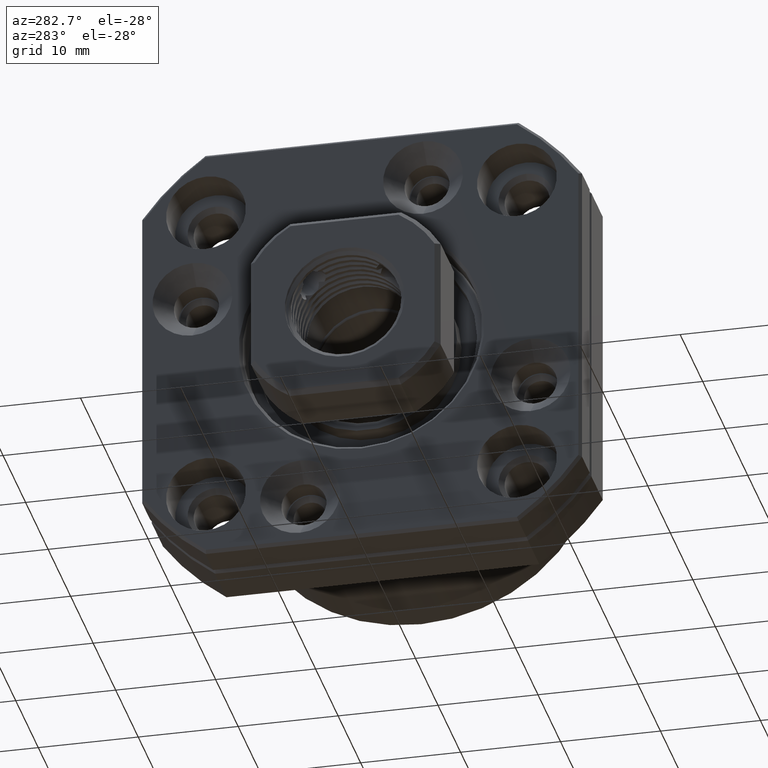
[diagram: clean part render]
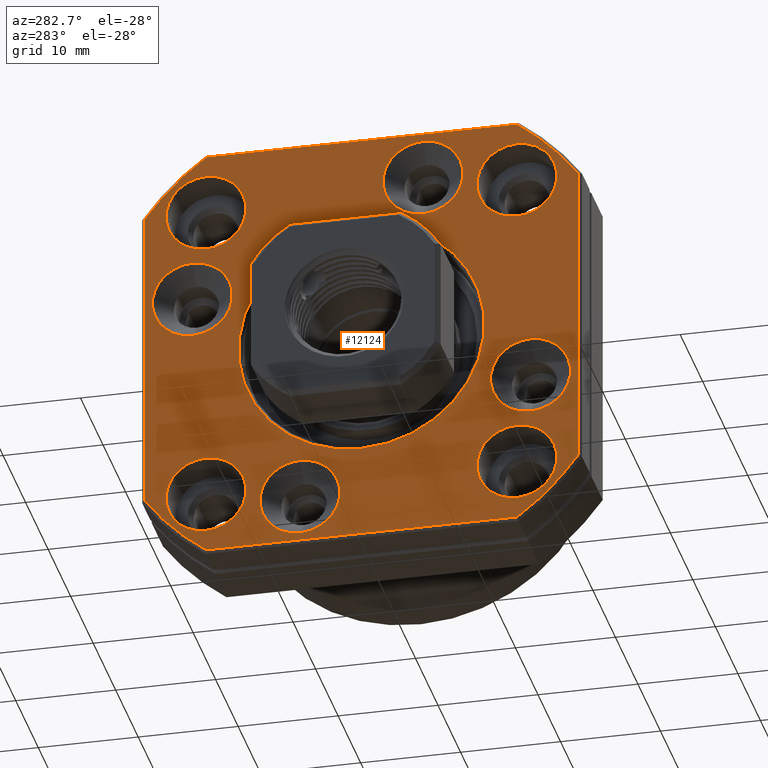
[diagram: same view with one face highlighted and labeled with its STEP entity id]
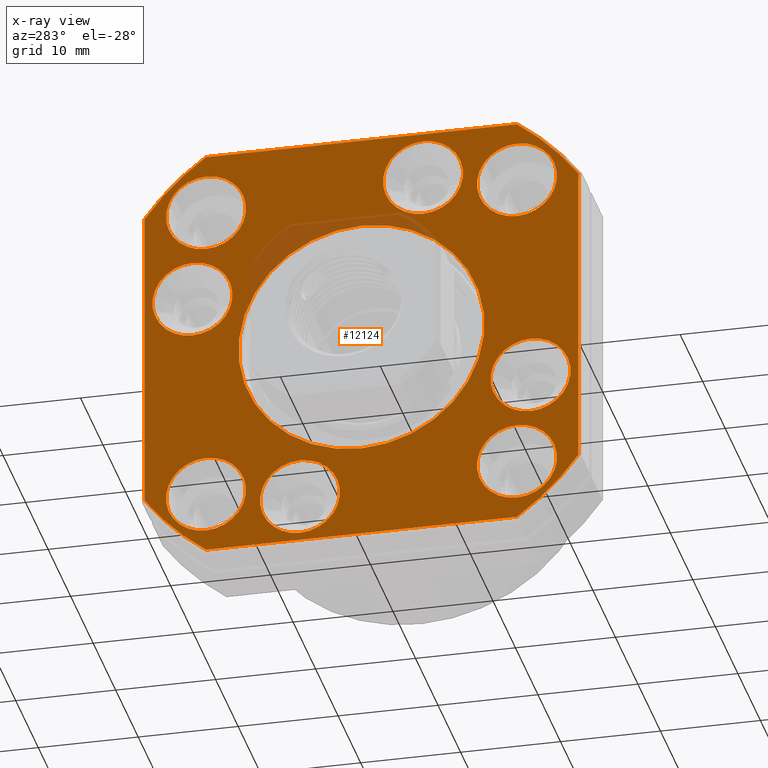
[diagram: x-ray of the same camera — body ghosted, the highlighted face saturated]
A machine part, auxiliary view. The second image highlights one B-rep face of the part: STEP entity #12124.
The next image is the same camera in x-ray: the body ghosted, the highlighted face saturated — about 4% of this face is hidden behind the body in this view.
In plain terms, the highlighted planar face has unit normal (1, 0, 0).
Its self-contained STEP definition (entity closure, byte-faithful):
#5464 = CARTESIAN_POINT ( 'NONE',  ( -3.999999999999998200, 16.91446717414641300, 10.15636257986187400 ) ) ;
#5465 = DIRECTION ( 'NONE',  ( 0.0000000000000000000, 0.0000000000000000000, 1.000000000000000000 ) ) ;
#5466 = DIRECTION ( 'NONE',  ( -1.000000000000000000, 0.0000000000000000000, 0.0000000000000000000 ) ) ;
#5467 = CARTESIAN_POINT ( 'NONE',  ( -3.999999999999998200, 16.91446717414641300, 6.156362579861873700 ) ) ;
#5468 = AXIS2_PLACEMENT_3D ( 'NONE', #5467, #5466, #5465 ) ;
#5469 = CIRCLE ( 'NONE', #5468, 4.000000000000000000 ) ;
#5470 = CARTESIAN_POINT ( 'NONE',  ( -3.999999999999998200, 16.91446717414641300, 2.156362579861874200 ) ) ;
#5494 = CARTESIAN_POINT ( 'NONE',  ( -3.999999999999996400, 0.0000000000000000000, 12.30000000000000100 ) ) ;
#5495 = DIRECTION ( 'NONE',  ( 0.0000000000000000000, 0.0000000000000000000, -1.000000000000000000 ) ) ;
#5496 = DIRECTION ( 'NONE',  ( 1.000000000000000000, 0.0000000000000000000, 0.0000000000000000000 ) ) ;
#5497 = CARTESIAN_POINT ( 'NONE',  ( -3.999999999999996400, 0.0000000000000000000, 0.0000000000000000000 ) ) ;
#5498 = AXIS2_PLACEMENT_3D ( 'NONE', #5497, #5496, #5495 ) ;
#5499 = CIRCLE ( 'NONE', #5498, 12.30000000000000100 ) ;
#5500 = CARTESIAN_POINT ( 'NONE',  ( -3.999999999999996400, 1.506265815201524100E-015, -12.30000000000000100 ) ) ;
#5542 = CARTESIAN_POINT ( 'NONE',  ( -3.999999999999998200, -6.156362579861933200, 20.91446717414638800 ) ) ;
#5543 = DIRECTION ( 'NONE',  ( 0.0000000000000000000, 0.0000000000000000000, 1.000000000000000000 ) ) ;
#5544 = DIRECTION ( 'NONE',  ( -1.000000000000000000, 0.0000000000000000000, 0.0000000000000000000 ) ) ;
#5545 = CARTESIAN_POINT ( 'NONE',  ( -3.999999999999998200, -6.156362579861933200, 16.91446717414638800 ) ) ;
#5546 = AXIS2_PLACEMENT_3D ( 'NONE', #5545, #5544, #5543 ) ;
#5547 = CIRCLE ( 'NONE', #5546, 4.000000000000000000 ) ;
#5548 = CARTESIAN_POINT ( 'NONE',  ( -3.999999999999998200, -6.156362579861932400, 12.91446717414638600 ) ) ;
#5553 = CARTESIAN_POINT ( 'NONE',  ( -3.999999999999998200, -16.91446717414636700, -2.156362579861991900 ) ) ;
#5554 = DIRECTION ( 'NONE',  ( 0.0000000000000000000, 0.0000000000000000000, 1.000000000000000000 ) ) ;
#5555 = DIRECTION ( 'NONE',  ( -1.000000000000000000, 0.0000000000000000000, 0.0000000000000000000 ) ) ;
#5556 = CARTESIAN_POINT ( 'NONE',  ( -3.999999999999998200, -16.91446717414636700, -6.156362579861991900 ) ) ;
#5557 = AXIS2_PLACEMENT_3D ( 'NONE', #5556, #5555, #5554 ) ;
#5558 = CIRCLE ( 'NONE', #5557, 4.000000000000000000 ) ;
#5559 = CARTESIAN_POINT ( 'NONE',  ( -3.999999999999998200, -16.91446717414636700, -10.15636257986199300 ) ) ;
#5578 = CARTESIAN_POINT ( 'NONE',  ( -3.999999999999997300, -15.55634918610385100, 19.55634918610422400 ) ) ;
#5579 = DIRECTION ( 'NONE',  ( 0.0000000000000000000, 0.0000000000000000000, 1.000000000000000000 ) ) ;
#5580 = DIRECTION ( 'NONE',  ( -1.000000000000000000, 0.0000000000000000000, 0.0000000000000000000 ) ) ;
#5581 = CARTESIAN_POINT ( 'NONE',  ( -3.999999999999997300, -15.55634918610385100, 15.55634918610423500 ) ) ;
#5582 = AXIS2_PLACEMENT_3D ( 'NONE', #5581, #5580, #5579 ) ;
#5583 = CIRCLE ( 'NONE', #5582, 3.999999999999988000 ) ;
#5584 = CARTESIAN_POINT ( 'NONE',  ( -3.999999999999997300, -15.55634918610385100, 11.55634918610424800 ) ) ;
#5638 = CARTESIAN_POINT ( 'NONE',  ( -3.999999999999998200, 6.156362579862051400, -12.91446717414634500 ) ) ;
#5639 = DIRECTION ( 'NONE',  ( 0.0000000000000000000, 0.0000000000000000000, 1.000000000000000000 ) ) ;
#5640 = DIRECTION ( 'NONE',  ( -1.000000000000000000, 0.0000000000000000000, 0.0000000000000000000 ) ) ;
#5641 = CARTESIAN_POINT ( 'NONE',  ( -3.999999999999998200, 6.156362579862051400, -16.91446717414634500 ) ) ;
#5642 = AXIS2_PLACEMENT_3D ( 'NONE', #5641, #5640, #5639 ) ;
#5643 = CIRCLE ( 'NONE', #5642, 4.000000000000000000 ) ;
#5644 = CARTESIAN_POINT ( 'NONE',  ( -3.999999999999998200, 6.156362579862052300, -20.91446717414634500 ) ) ;
#5669 = CARTESIAN_POINT ( 'NONE',  ( -3.999999999999997300, 15.55634918610396200, -11.55634918610413700 ) ) ;
#5670 = DIRECTION ( 'NONE',  ( 0.0000000000000000000, 0.0000000000000000000, 1.000000000000000000 ) ) ;
#5671 = DIRECTION ( 'NONE',  ( -1.000000000000000000, 0.0000000000000000000, 0.0000000000000000000 ) ) ;
#5672 = CARTESIAN_POINT ( 'NONE',  ( -3.999999999999997300, 15.55634918610396200, -15.55634918610412500 ) ) ;
#5673 = AXIS2_PLACEMENT_3D ( 'NONE', #5672, #5671, #5670 ) ;
#5674 = CIRCLE ( 'NONE', #5673, 3.999999999999988000 ) ;
#5698 = CARTESIAN_POINT ( 'NONE',  ( -3.999999999999997300, -15.55634918610418200, -11.55634918610391700 ) ) ;
#5699 = DIRECTION ( 'NONE',  ( 0.0000000000000000000, 0.0000000000000000000, 1.000000000000000000 ) ) ;
#5700 = DIRECTION ( 'NONE',  ( -1.000000000000000000, 0.0000000000000000000, 0.0000000000000000000 ) ) ;
#5701 = CARTESIAN_POINT ( 'NONE',  ( -3.999999999999997300, -15.55634918610418200, -15.55634918610390500 ) ) ;
#5702 = AXIS2_PLACEMENT_3D ( 'NONE', #5701, #5700, #5699 ) ;
#5703 = CIRCLE ( 'NONE', #5702, 3.999999999999988000 ) ;
#5704 = CARTESIAN_POINT ( 'NONE',  ( -3.999999999999997300, -15.55634918610418200, -19.55634918610389400 ) ) ;
#5709 = CARTESIAN_POINT ( 'NONE',  ( -3.999999999999997300, 15.55634918610407200, 11.55634918610402900 ) ) ;
#5724 = DIRECTION ( 'NONE',  ( 0.0000000000000000000, 8.881784197001252300E-016, -1.000000000000000000 ) ) ;
#5725 = DIRECTION ( 'NONE',  ( -1.000000000000000000, -0.0000000000000000000, -0.0000000000000000000 ) ) ;
#5726 = CARTESIAN_POINT ( 'NONE',  ( -3.999999999999996400, 0.0000000000000000000, 0.0000000000000000000 ) ) ;
#5727 = AXIS2_PLACEMENT_3D ( 'NONE', #5726, #5725, #5724 ) ;
#5728 = CIRCLE ( 'NONE', #5727, 26.69999999999999900 ) ;
#5730 = CARTESIAN_POINT ( 'NONE',  ( -3.999999999999996400, -15.55634918610403600, -21.70000000000000300 ) ) ;
#5731 = DIRECTION ( 'NONE',  ( 0.0000000000000000000, -1.000000000000000000, 0.0000000000000000000 ) ) ;
#5732 = VECTOR ( 'NONE', #5731, 1000.000000000000000 ) ;
#5733 = CARTESIAN_POINT ( 'NONE',  ( -3.999999999999996400, -15.65247584249851800, -21.70000000000000300 ) ) ;
#5734 = LINE ( 'NONE', #5733, #5732 ) ;
#5736 = CARTESIAN_POINT ( 'NONE',  ( -3.999999999999997300, 15.55634918610396200, -19.55634918610411100 ) ) ;
#5755 = DIRECTION ( 'NONE',  ( 0.0000000000000000000, 5.329070518200751400E-015, -1.000000000000000000 ) ) ;
#5756 = DIRECTION ( 'NONE',  ( -1.000000000000000000, -0.0000000000000000000, -0.0000000000000000000 ) ) ;
#5757 = CARTESIAN_POINT ( 'NONE',  ( -3.999999999999996400, 0.0000000000000000000, 0.0000000000000000000 ) ) ;
#5758 = AXIS2_PLACEMENT_3D ( 'NONE', #5757, #5756, #5755 ) ;
#5759 = CIRCLE ( 'NONE', #5758, 26.69999999999999900 ) ;
#5760 = CARTESIAN_POINT ( 'NONE',  ( -3.999999999999996400, 15.55634918610405400, 21.69999999999999200 ) ) ;
#5761 = DIRECTION ( 'NONE',  ( 0.0000000000000000000, 1.000000000000000000, 0.0000000000000000000 ) ) ;
#5762 = VECTOR ( 'NONE', #5761, 1000.000000000000000 ) ;
#5763 = CARTESIAN_POINT ( 'NONE',  ( -3.999999999999996400, 15.65247584249853600, 21.69999999999998900 ) ) ;
#5764 = LINE ( 'NONE', #5763, #5762 ) ;
#5765 = CARTESIAN_POINT ( 'NONE',  ( -3.999999999999996400, -15.55634918610405400, 21.69999999999998900 ) ) ;
#5766 = DIRECTION ( 'NONE',  ( 0.0000000000000000000, 0.0000000000000000000, -1.000000000000000000 ) ) ;
#5767 = DIRECTION ( 'NONE',  ( -1.000000000000000000, -0.0000000000000000000, -0.0000000000000000000 ) ) ;
#5768 = CARTESIAN_POINT ( 'NONE',  ( -3.999999999999996400, 0.0000000000000000000, 0.0000000000000000000 ) ) ;
#5769 = AXIS2_PLACEMENT_3D ( 'NONE', #5768, #5767, #5766 ) ;
#5770 = CIRCLE ( 'NONE', #5769, 26.69999999999999900 ) ;
#5771 = CARTESIAN_POINT ( 'NONE',  ( -3.999999999999996400, -21.69999999999999200, 15.55634918610404900 ) ) ;
#5772 = CARTESIAN_POINT ( 'NONE',  ( -3.999999999999996400, -21.69999999999999200, -15.55634918610404900 ) ) ;
#5773 = DIRECTION ( 'NONE',  ( 0.0000000000000000000, 0.0000000000000000000, 1.000000000000000000 ) ) ;
#5774 = VECTOR ( 'NONE', #5773, 1000.000000000000000 ) ;
#5775 = CARTESIAN_POINT ( 'NONE',  ( -3.999999999999996400, -21.69999999999999200, 15.65247584249852900 ) ) ;
#5776 = LINE ( 'NONE', #5775, #5774 ) ;
#5777 = DIRECTION ( 'NONE',  ( 0.0000000000000000000, 0.0000000000000000000, -1.000000000000000000 ) ) ;
#5778 = DIRECTION ( 'NONE',  ( 1.000000000000000000, 0.0000000000000000000, 0.0000000000000000000 ) ) ;
#5779 = CARTESIAN_POINT ( 'NONE',  ( -3.999999999999996400, 0.0000000000000000000, 0.0000000000000000000 ) ) ;
#5780 = AXIS2_PLACEMENT_3D ( 'NONE', #5779, #5778, #5777 ) ;
#5781 = CIRCLE ( 'NONE', #5780, 12.30000000000000100 ) ;
#5782 = DIRECTION ( 'NONE',  ( 0.0000000000000000000, 0.0000000000000000000, 1.000000000000000000 ) ) ;
#5783 = DIRECTION ( 'NONE',  ( -1.000000000000000000, 0.0000000000000000000, 0.0000000000000000000 ) ) ;
#5784 = CARTESIAN_POINT ( 'NONE',  ( -3.999999999999998200, -6.156362579861933200, 16.91446717414638800 ) ) ;
#5785 = AXIS2_PLACEMENT_3D ( 'NONE', #5784, #5783, #5782 ) ;
#5786 = CIRCLE ( 'NONE', #5785, 4.000000000000000000 ) ;
#5787 = CIRCLE ( 'NONE', #5855, 3.999999999999986200 ) ;
#5788 = DIRECTION ( 'NONE',  ( 0.0000000000000000000, 0.0000000000000000000, -1.000000000000000000 ) ) ;
#5789 = DIRECTION ( 'NONE',  ( 1.000000000000000000, 0.0000000000000000000, 0.0000000000000000000 ) ) ;
#5790 = AXIS2_PLACEMENT_3D ( 'NONE', #5792, #5789, #5788 ) ;
#5791 = CARTESIAN_POINT ( 'NONE',  ( -3.999999999999997300, 15.55634918610407200, 15.55634918610401500 ) ) ;
#5792 = CARTESIAN_POINT ( 'NONE',  ( -3.999999999999996400, 12.00000000000000000, 0.0000000000000000000 ) ) ;
#5793 = PLANE ( 'NONE',  #5790 ) ;
#5794 = FACE_BOUND ( 'NONE', #12153, .T. ) ;
#5795 = FACE_BOUND ( 'NONE', #12149, .T. ) ;
#5796 = FACE_BOUND ( 'NONE', #12145, .T. ) ;
#5797 = FACE_BOUND ( 'NONE', #12167, .T. ) ;
#5798 = FACE_BOUND ( 'NONE', #12163, .T. ) ;
#5799 = FACE_BOUND ( 'NONE', #12159, .T. ) ;
#5800 = FACE_BOUND ( 'NONE', #12155, .T. ) ;
#5801 = FACE_BOUND ( 'NONE', #12095, .T. ) ;
#5802 = FACE_OUTER_BOUND ( 'NONE', #12099, .T. ) ;
#5803 = FACE_BOUND ( 'NONE', #12125, .T. ) ;
#5822 = CARTESIAN_POINT ( 'NONE',  ( -3.999999999999996400, 21.69999999999999600, -15.55634918610404700 ) ) ;
#5823 = CARTESIAN_POINT ( 'NONE',  ( -3.999999999999996400, 21.69999999999999600, 15.55634918610404700 ) ) ;
#5824 = DIRECTION ( 'NONE',  ( 0.0000000000000000000, 0.0000000000000000000, 1.000000000000000000 ) ) ;
#5825 = DIRECTION ( 'NONE',  ( -1.000000000000000000, 0.0000000000000000000, 0.0000000000000000000 ) ) ;
#5826 = CARTESIAN_POINT ( 'NONE',  ( -3.999999999999998200, 6.156362579862051400, -16.91446717414634500 ) ) ;
#5827 = AXIS2_PLACEMENT_3D ( 'NONE', #5826, #5825, #5824 ) ;
#5828 = CIRCLE ( 'NONE', #5827, 4.000000000000000000 ) ;
#5829 = CIRCLE ( 'NONE', #5885, 4.000000000000000000 ) ;
#5830 = DIRECTION ( 'NONE',  ( 0.0000000000000000000, 0.0000000000000000000, 1.000000000000000000 ) ) ;
#5831 = DIRECTION ( 'NONE',  ( -1.000000000000000000, 0.0000000000000000000, 0.0000000000000000000 ) ) ;
#5832 = CARTESIAN_POINT ( 'NONE',  ( -3.999999999999997300, -15.55634918610418200, -15.55634918610390500 ) ) ;
#5833 = AXIS2_PLACEMENT_3D ( 'NONE', #5832, #5831, #5830 ) ;
#5834 = CIRCLE ( 'NONE', #5833, 3.999999999999988000 ) ;
#5852 = CARTESIAN_POINT ( 'NONE',  ( -3.999999999999997300, 15.55634918610407200, 19.55634918610400100 ) ) ;
#5853 = DIRECTION ( 'NONE',  ( 0.0000000000000000000, 0.0000000000000000000, 1.000000000000000000 ) ) ;
#5854 = DIRECTION ( 'NONE',  ( -1.000000000000000000, 0.0000000000000000000, 0.0000000000000000000 ) ) ;
#5855 = AXIS2_PLACEMENT_3D ( 'NONE', #5791, #5854, #5853 ) ;
#5857 = CARTESIAN_POINT ( 'NONE',  ( -3.999999999999996400, 15.55634918610403800, -21.70000000000000300 ) ) ;
#5858 = DIRECTION ( 'NONE',  ( 0.0000000000000000000, -1.776356839400250500E-015, -1.000000000000000000 ) ) ;
#5859 = DIRECTION ( 'NONE',  ( -1.000000000000000000, -0.0000000000000000000, -0.0000000000000000000 ) ) ;
#5860 = CARTESIAN_POINT ( 'NONE',  ( -3.999999999999996400, 0.0000000000000000000, 0.0000000000000000000 ) ) ;
#5861 = AXIS2_PLACEMENT_3D ( 'NONE', #5860, #5859, #5858 ) ;
#5862 = CIRCLE ( 'NONE', #5861, 26.69999999999999900 ) ;
#5863 = DIRECTION ( 'NONE',  ( 0.0000000000000000000, 0.0000000000000000000, -1.000000000000000000 ) ) ;
#5864 = VECTOR ( 'NONE', #5863, 1000.000000000000000 ) ;
#5865 = CARTESIAN_POINT ( 'NONE',  ( -3.999999999999996400, 21.69999999999999600, -15.65247584249852900 ) ) ;
#5866 = LINE ( 'NONE', #5865, #5864 ) ;
#5867 = DIRECTION ( 'NONE',  ( 0.0000000000000000000, 0.0000000000000000000, 1.000000000000000000 ) ) ;
#5868 = DIRECTION ( 'NONE',  ( -1.000000000000000000, 0.0000000000000000000, 0.0000000000000000000 ) ) ;
#5869 = CARTESIAN_POINT ( 'NONE',  ( -3.999999999999997300, 15.55634918610396200, -15.55634918610412500 ) ) ;
#5870 = AXIS2_PLACEMENT_3D ( 'NONE', #5869, #5868, #5867 ) ;
#5871 = CIRCLE ( 'NONE', #5870, 3.999999999999988000 ) ;
#5872 = DIRECTION ( 'NONE',  ( 0.0000000000000000000, 0.0000000000000000000, 1.000000000000000000 ) ) ;
#5873 = DIRECTION ( 'NONE',  ( -1.000000000000000000, 0.0000000000000000000, 0.0000000000000000000 ) ) ;
#5874 = CARTESIAN_POINT ( 'NONE',  ( -3.999999999999997300, 15.55634918610407200, 15.55634918610401500 ) ) ;
#5875 = AXIS2_PLACEMENT_3D ( 'NONE', #5874, #5873, #5872 ) ;
#5876 = CIRCLE ( 'NONE', #5875, 3.999999999999986200 ) ;
#5877 = DIRECTION ( 'NONE',  ( 0.0000000000000000000, 0.0000000000000000000, 1.000000000000000000 ) ) ;
#5878 = DIRECTION ( 'NONE',  ( -1.000000000000000000, 0.0000000000000000000, 0.0000000000000000000 ) ) ;
#5879 = CARTESIAN_POINT ( 'NONE',  ( -3.999999999999997300, -15.55634918610385100, 15.55634918610423500 ) ) ;
#5880 = AXIS2_PLACEMENT_3D ( 'NONE', #5879, #5878, #5877 ) ;
#5881 = CIRCLE ( 'NONE', #5880, 3.999999999999988000 ) ;
#5882 = DIRECTION ( 'NONE',  ( 0.0000000000000000000, 0.0000000000000000000, 1.000000000000000000 ) ) ;
#5883 = DIRECTION ( 'NONE',  ( -1.000000000000000000, 0.0000000000000000000, 0.0000000000000000000 ) ) ;
#5884 = CARTESIAN_POINT ( 'NONE',  ( -3.999999999999998200, -16.91446717414636700, -6.156362579861991900 ) ) ;
#5885 = AXIS2_PLACEMENT_3D ( 'NONE', #5884, #5883, #5882 ) ;
#5968 = DIRECTION ( 'NONE',  ( 0.0000000000000000000, 0.0000000000000000000, 1.000000000000000000 ) ) ;
#5969 = DIRECTION ( 'NONE',  ( -1.000000000000000000, 0.0000000000000000000, 0.0000000000000000000 ) ) ;
#5970 = CARTESIAN_POINT ( 'NONE',  ( -3.999999999999998200, 16.91446717414641300, 6.156362579861873700 ) ) ;
#5971 = AXIS2_PLACEMENT_3D ( 'NONE', #5970, #5969, #5968 ) ;
#5972 = CIRCLE ( 'NONE', #5971, 4.000000000000000000 ) ;
#11943 = VERTEX_POINT ( 'NONE', #5470 ) ;
#11945 = EDGE_CURVE ( 'NONE', #11943, #11946, #5469, .T. ) ;
#11946 = VERTEX_POINT ( 'NONE', #5464 ) ;
#11960 = VERTEX_POINT ( 'NONE', #5500 ) ;
#11962 = EDGE_CURVE ( 'NONE', #11963, #11960, #5499, .T. ) ;
#11963 = VERTEX_POINT ( 'NONE', #5494 ) ;
#11993 = VERTEX_POINT ( 'NONE', #5559 ) ;
#11995 = EDGE_CURVE ( 'NONE', #11993, #11996, #5558, .T. ) ;
#11996 = VERTEX_POINT ( 'NONE', #5553 ) ;
#11998 = VERTEX_POINT ( 'NONE', #5548 ) ;
#12000 = EDGE_CURVE ( 'NONE', #11998, #12001, #5547, .T. ) ;
#12001 = VERTEX_POINT ( 'NONE', #5542 ) ;
#12009 = VERTEX_POINT ( 'NONE', #5584 ) ;
#12011 = EDGE_CURVE ( 'NONE', #12009, #12012, #5583, .T. ) ;
#12012 = VERTEX_POINT ( 'NONE', #5578 ) ;
#12042 = VERTEX_POINT ( 'NONE', #5644 ) ;
#12044 = EDGE_CURVE ( 'NONE', #12042, #12045, #5643, .T. ) ;
#12045 = VERTEX_POINT ( 'NONE', #5638 ) ;
#12059 = EDGE_CURVE ( 'NONE', #12088, #12060, #5674, .T. ) ;
#12060 = VERTEX_POINT ( 'NONE', #5669 ) ;
#12071 = VERTEX_POINT ( 'NONE', #5709 ) ;
#12074 = VERTEX_POINT ( 'NONE', #5704 ) ;
#12076 = EDGE_CURVE ( 'NONE', #12074, #12077, #5703, .T. ) ;
#12077 = VERTEX_POINT ( 'NONE', #5698 ) ;
#12088 = VERTEX_POINT ( 'NONE', #5736 ) ;
#12091 = EDGE_CURVE ( 'NONE', #12172, #12092, #5734, .T. ) ;
#12092 = VERTEX_POINT ( 'NONE', #5730 ) ;
#12093 = ORIENTED_EDGE ( 'NONE', *, *, #12094, .T. ) ;
#12094 = EDGE_CURVE ( 'NONE', #12092, #12102, #5728, .T. ) ;
#12095 = EDGE_LOOP ( 'NONE', ( #12096, #12154 ) ) ;
#12096 = ORIENTED_EDGE ( 'NONE', *, *, #12097, .F. ) ;
#12097 = EDGE_CURVE ( 'NONE', #12001, #11998, #5786, .T. ) ;
#12098 = EDGE_CURVE ( 'NONE', #11960, #11963, #5781, .T. ) ;
#12099 = EDGE_LOOP ( 'NONE', ( #12100, #12104, #12107, #12110, #12168, #12170, #12173, #12093 ) ) ;
#12100 = ORIENTED_EDGE ( 'NONE', *, *, #12101, .T. ) ;
#12101 = EDGE_CURVE ( 'NONE', #12102, #12103, #5776, .T. ) ;
#12102 = VERTEX_POINT ( 'NONE', #5772 ) ;
#12103 = VERTEX_POINT ( 'NONE', #5771 ) ;
#12104 = ORIENTED_EDGE ( 'NONE', *, *, #12105, .T. ) ;
#12105 = EDGE_CURVE ( 'NONE', #12103, #12106, #5770, .T. ) ;
#12106 = VERTEX_POINT ( 'NONE', #5765 ) ;
#12107 = ORIENTED_EDGE ( 'NONE', *, *, #12108, .T. ) ;
#12108 = EDGE_CURVE ( 'NONE', #12106, #12109, #5764, .T. ) ;
#12109 = VERTEX_POINT ( 'NONE', #5760 ) ;
#12110 = ORIENTED_EDGE ( 'NONE', *, *, #12111, .T. ) ;
#12111 = EDGE_CURVE ( 'NONE', #12109, #12112, #5759, .T. ) ;
#12112 = VERTEX_POINT ( 'NONE', #5823 ) ;
#12113 = VERTEX_POINT ( 'NONE', #5822 ) ;
#12124 = ADVANCED_FACE ( 'NONE', ( #5803, #5802, #5801, #5800, #5799, #5798, #5797, #5796, #5795, #5794 ), #5793, .F. ) ;
#12125 = EDGE_LOOP ( 'NONE', ( #12126, #12127 ) ) ;
#12126 = ORIENTED_EDGE ( 'NONE', *, *, #11962, .T. ) ;
#12127 = ORIENTED_EDGE ( 'NONE', *, *, #12098, .T. ) ;
#12129 = EDGE_CURVE ( 'NONE', #12071, #12130, #5787, .T. ) ;
#12130 = VERTEX_POINT ( 'NONE', #5852 ) ;
#12142 = ORIENTED_EDGE ( 'NONE', *, *, #12143, .F. ) ;
#12143 = EDGE_CURVE ( 'NONE', #12077, #12074, #5834, .T. ) ;
#12144 = ORIENTED_EDGE ( 'NONE', *, *, #12076, .F. ) ;
#12145 = EDGE_LOOP ( 'NONE', ( #12146, #12148 ) ) ;
#12146 = ORIENTED_EDGE ( 'NONE', *, *, #12147, .F. ) ;
#12147 = EDGE_CURVE ( 'NONE', #12045, #12042, #5828, .T. ) ;
#12148 = ORIENTED_EDGE ( 'NONE', *, *, #12044, .F. ) ;
#12149 = EDGE_LOOP ( 'NONE', ( #12150, #12152 ) ) ;
#12150 = ORIENTED_EDGE ( 'NONE', *, *, #12151, .F. ) ;
#12151 = EDGE_CURVE ( 'NONE', #11996, #11993, #5829, .T. ) ;
#12152 = ORIENTED_EDGE ( 'NONE', *, *, #11995, .F. ) ;
#12153 = EDGE_LOOP ( 'NONE', ( #12208, #12211 ) ) ;
#12154 = ORIENTED_EDGE ( 'NONE', *, *, #12000, .F. ) ;
#12155 = EDGE_LOOP ( 'NONE', ( #12156, #12158 ) ) ;
#12156 = ORIENTED_EDGE ( 'NONE', *, *, #12157, .F. ) ;
#12157 = EDGE_CURVE ( 'NONE', #12012, #12009, #5881, .T. ) ;
#12158 = ORIENTED_EDGE ( 'NONE', *, *, #12011, .F. ) ;
#12159 = EDGE_LOOP ( 'NONE', ( #12160, #12162 ) ) ;
#12160 = ORIENTED_EDGE ( 'NONE', *, *, #12161, .F. ) ;
#12161 = EDGE_CURVE ( 'NONE', #12130, #12071, #5876, .T. ) ;
#12162 = ORIENTED_EDGE ( 'NONE', *, *, #12129, .F. ) ;
#12163 = EDGE_LOOP ( 'NONE', ( #12164, #12166 ) ) ;
#12164 = ORIENTED_EDGE ( 'NONE', *, *, #12165, .F. ) ;
#12165 = EDGE_CURVE ( 'NONE', #12060, #12088, #5871, .T. ) ;
#12166 = ORIENTED_EDGE ( 'NONE', *, *, #12059, .F. ) ;
#12167 = EDGE_LOOP ( 'NONE', ( #12142, #12144 ) ) ;
#12168 = ORIENTED_EDGE ( 'NONE', *, *, #12169, .T. ) ;
#12169 = EDGE_CURVE ( 'NONE', #12112, #12113, #5866, .T. ) ;
#12170 = ORIENTED_EDGE ( 'NONE', *, *, #12171, .T. ) ;
#12171 = EDGE_CURVE ( 'NONE', #12113, #12172, #5862, .T. ) ;
#12172 = VERTEX_POINT ( 'NONE', #5857 ) ;
#12173 = ORIENTED_EDGE ( 'NONE', *, *, #12091, .T. ) ;
#12208 = ORIENTED_EDGE ( 'NONE', *, *, #12210, .F. ) ;
#12210 = EDGE_CURVE ( 'NONE', #11946, #11943, #5972, .T. ) ;
#12211 = ORIENTED_EDGE ( 'NONE', *, *, #11945, .F. ) ;